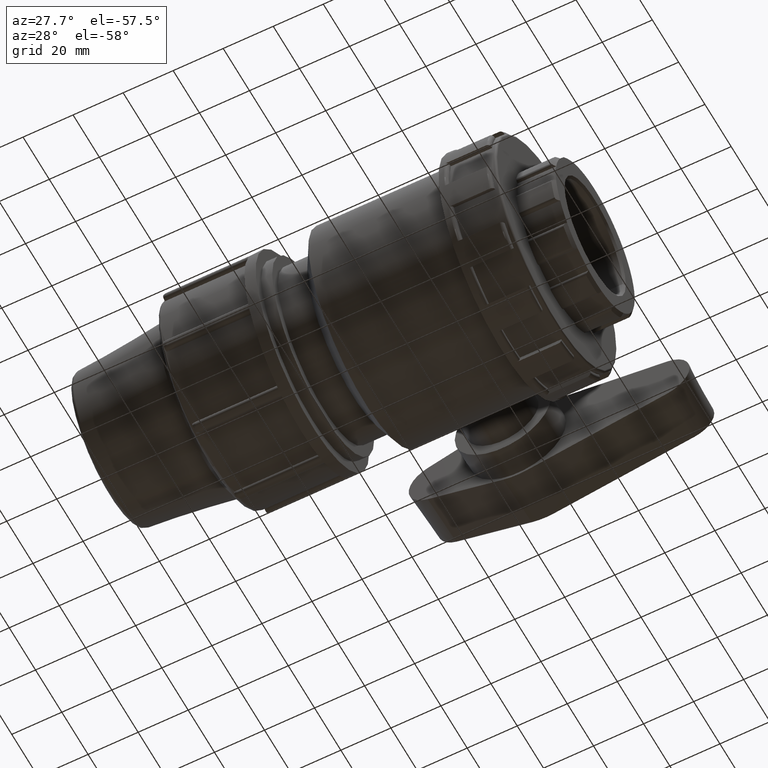
[diagram: clean part render]
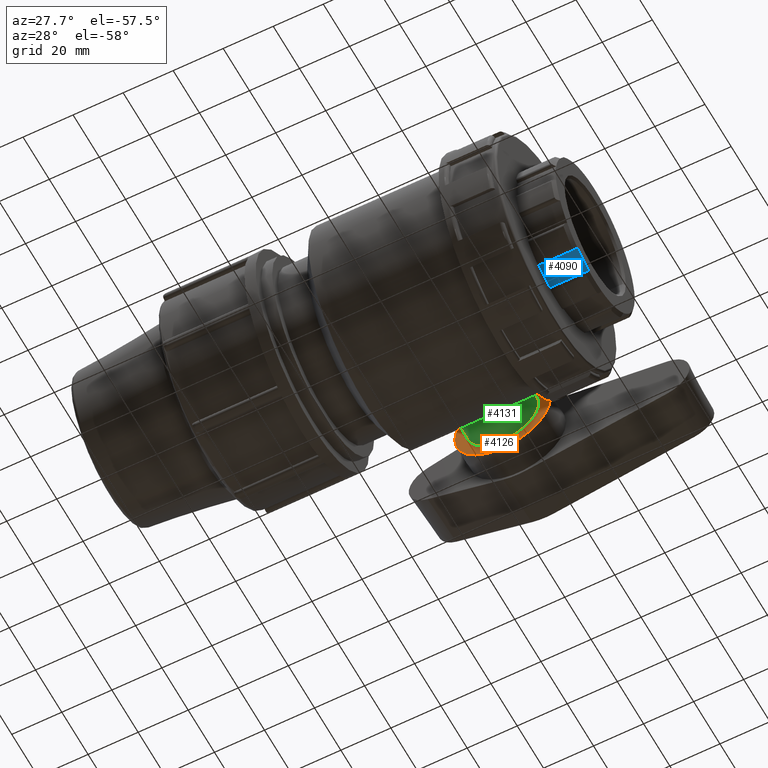
[diagram: same view with three faces highlighted in distinct colors, each labeled with its STEP entity id]
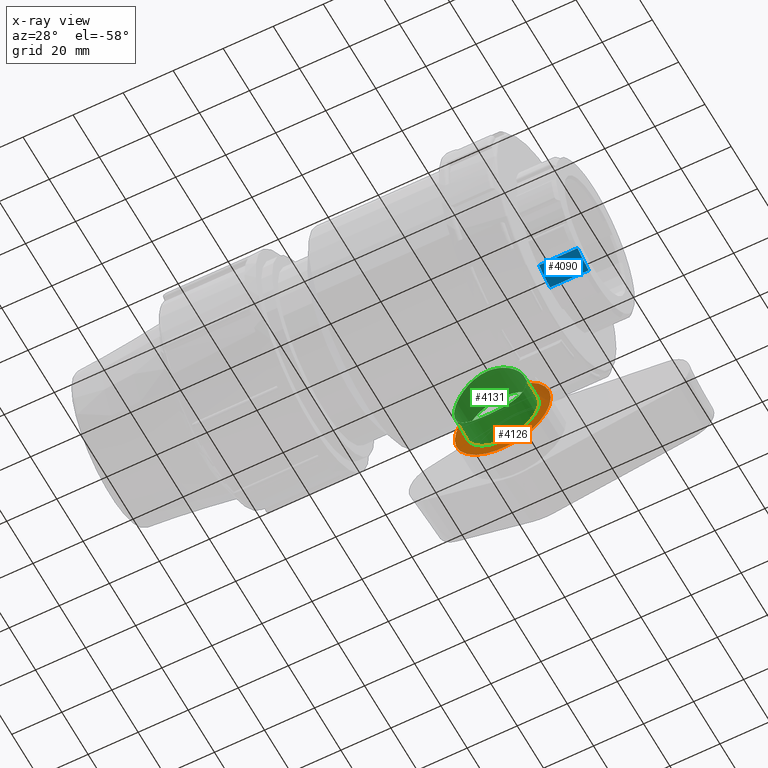
[diagram: x-ray of the same camera — body ghosted, the three highlighted faces saturated]
A machine part, auxiliary view with three faces highlighted in distinct colors.
The next image is the same camera in x-ray (body ghosted, the three faces saturated) — at least one of them is partly hidden behind the body in this view.
Their STEP definitions:

[orange] entity #4126 — the highlighted planar face has unit normal (0, -1, 0).
#44=FACE_BOUND('',#765,.T.);
#151=PLANE('',#4531);
#506=FACE_OUTER_BOUND('',#764,.T.);
#764=EDGE_LOOP('',(#3355));
#765=EDGE_LOOP('',(#3356));
#1513=CIRCLE('',#4532,19.2);
#1514=CIRCLE('',#4533,14.4);
#1855=VERTEX_POINT('',#7686);
#1856=VERTEX_POINT('',#7688);
#2406=EDGE_CURVE('',#1855,#1855,#1513,.T.);
#2407=EDGE_CURVE('',#1856,#1856,#1514,.T.);
#3355=ORIENTED_EDGE('',*,*,#2406,.F.);
#3356=ORIENTED_EDGE('',*,*,#2407,.F.);
#4126=ADVANCED_FACE('',(#506,#44),#151,.T.);
#4531=AXIS2_PLACEMENT_3D('',#7685,#5466,#5467);
#4532=AXIS2_PLACEMENT_3D('',#7687,#5468,#5469);
#4533=AXIS2_PLACEMENT_3D('',#7689,#5470,#5471);
#5466=DIRECTION('center_axis',(3.00964072940555E-16,-1.,0.));
#5467=DIRECTION('ref_axis',(0.,0.,-1.));
#5468=DIRECTION('center_axis',(-3.00964072940555E-16,1.,0.));
#5469=DIRECTION('ref_axis',(1.,3.00964072940555E-16,0.));
#5470=DIRECTION('center_axis',(0.,-1.,0.));
#5471=DIRECTION('ref_axis',(1.,0.,0.));
#7685=CARTESIAN_POINT('Origin',(-19.2,52.8,0.));
#7686=CARTESIAN_POINT('',(-19.2,52.8,0.));
#7687=CARTESIAN_POINT('Origin',(-3.71127622851111E-30,52.8,0.));
#7688=CARTESIAN_POINT('',(-14.4,52.8,1.76349139077219E-15));
#7689=CARTESIAN_POINT('Origin',(0.,52.8,0.));

[blue] entity #4090 — the highlighted cylindrical surface (partial cylindrical patch) has radius 30.0462 mm, axis along (-1, 0, 0).
#470=FACE_OUTER_BOUND('',#726,.T.);
#726=EDGE_LOOP('',(#3198,#3199,#3200,#3201));
#975=LINE('',#7401,#1203);
#977=LINE('',#7421,#1205);
#1203=VECTOR('',#5197,15.4);
#1205=VECTOR('',#5203,15.4);
#1472=CIRCLE('',#4455,30.04615);
#1473=CIRCLE('',#4456,30.04615);
#1795=VERTEX_POINT('',#7382);
#1797=VERTEX_POINT('',#7399);
#1798=VERTEX_POINT('',#7403);
#1801=VERTEX_POINT('',#7408);
#2295=EDGE_CURVE('',#1795,#1797,#975,.T.);
#2299=EDGE_CURVE('',#1801,#1798,#977,.T.);
#2335=EDGE_CURVE('',#1801,#1795,#1472,.T.);
#2336=EDGE_CURVE('',#1797,#1798,#1473,.T.);
#3198=ORIENTED_EDGE('',*,*,#2335,.T.);
#3199=ORIENTED_EDGE('',*,*,#2295,.T.);
#3200=ORIENTED_EDGE('',*,*,#2336,.T.);
#3201=ORIENTED_EDGE('',*,*,#2299,.F.);
#3945=CYLINDRICAL_SURFACE('',#4454,30.04615);
#4090=ADVANCED_FACE('',(#470),#3945,.T.);
#4454=AXIS2_PLACEMENT_3D('',#7532,#5283,#5284);
#4455=AXIS2_PLACEMENT_3D('',#7533,#5285,#5286);
#4456=AXIS2_PLACEMENT_3D('',#7534,#5287,#5288);
#5197=DIRECTION('',(-1.,0.,0.));
#5203=DIRECTION('',(-1.,0.,0.));
#5283=DIRECTION('center_axis',(-1.,0.,0.));
#5284=DIRECTION('ref_axis',(0.,0.951056516295154,-0.309016994374947));
#5285=DIRECTION('center_axis',(-1.,0.,0.));
#5286=DIRECTION('ref_axis',(0.,-1.,0.));
#5287=DIRECTION('center_axis',(1.,0.,0.));
#5288=DIRECTION('ref_axis',(0.,0.951056516295154,-0.309016994374947));
#7382=CARTESIAN_POINT('',(64.6666666666667,-13.4457845419884,-26.8697228841855));
#7399=CARTESIAN_POINT('',(49.2666666666667,-13.4457845419884,-26.8697228841855));
#7401=CARTESIAN_POINT('',(64.6666666666667,-13.4457845419884,-26.8697228841855));
#7403=CARTESIAN_POINT('',(49.2666666666667,-4.9157586473372,-29.6412963067344));
#7408=CARTESIAN_POINT('',(64.6666666666667,-4.9157586473372,-29.6412963067344));
#7421=CARTESIAN_POINT('',(64.6666666666667,-4.9157586473372,-29.6412963067344));
#7532=CARTESIAN_POINT('Origin',(64.6666666666667,0.,0.));
#7533=CARTESIAN_POINT('Origin',(64.6666666666667,0.,0.));
#7534=CARTESIAN_POINT('Origin',(49.2666666666667,0.,0.));

[green] entity #4131 — the highlighted cylindrical surface (bore or boss wall) has radius 14.4 mm, axis along (0, -1, 0).
#46=FACE_BOUND('',#772,.T.);
#291=B_SPLINE_CURVE_WITH_KNOTS('',3,(#7704,#7705,#7706,#7707,#7708,#7709,
#7710,#7711,#7712,#7713,#7714,#7715,#7716,#7717,#7718,#7719,#7720,#7721,
#7722,#7723,#7724,#7725,#7726,#7727,#7728,#7729,#7730,#7731,#7732,#7733,
#7734,#7735,#7736,#7737,#7738,#7739,#7740,#7741,#7742,#7743,#7744,#7745,
#7746,#7747,#7748,#7749,#7750,#7751,#7752,#7753),.UNSPECIFIED.,.T.,.F.,
(4,2,2,2,2,2,2,2,2,2,2,2,2,2,2,2,2,2,2,2,2,2,2,2,4),(0.,0.273555490481054,
0.547110980962108,1.09422196192422,1.64107919239118,1.91450780762465,2.18793642285813,
2.46136503809161,2.73479365332509,3.28165088379205,3.82876186475416,4.10231735523521,
4.37587284571627,4.64942833619732,4.92298382667838,5.47009480764048,6.01695203810744,
6.29038065334092,6.5638092685744,6.83723788380788,7.11066649904136,7.65752372950832,
8.20463471047043,8.47819020095148,8.75174569143254),.UNSPECIFIED.);
#511=FACE_OUTER_BOUND('',#771,.T.);
#771=EDGE_LOOP('',(#3371));
#772=EDGE_LOOP('',(#3372));
#1514=CIRCLE('',#4533,14.4);
#1856=VERTEX_POINT('',#7688);
#1859=VERTEX_POINT('',#7703);
#2407=EDGE_CURVE('',#1856,#1856,#1514,.T.);
#2414=EDGE_CURVE('',#1859,#1859,#291,.T.);
#3371=ORIENTED_EDGE('',*,*,#2407,.T.);
#3372=ORIENTED_EDGE('',*,*,#2414,.F.);
#3967=CYLINDRICAL_SURFACE('',#4542,14.4);
#4131=ADVANCED_FACE('',(#511,#46),#3967,.T.);
#4533=AXIS2_PLACEMENT_3D('',#7689,#5470,#5471);
#4542=AXIS2_PLACEMENT_3D('',#7702,#5490,#5491);
#5470=DIRECTION('center_axis',(0.,-1.,0.));
#5471=DIRECTION('ref_axis',(1.,0.,0.));
#5490=DIRECTION('center_axis',(0.,-1.,0.));
#5491=DIRECTION('ref_axis',(1.,0.,0.));
#7688=CARTESIAN_POINT('',(-14.4,52.8,1.76349139077219E-15));
#7689=CARTESIAN_POINT('Origin',(0.,52.8,0.));
#7702=CARTESIAN_POINT('Origin',(0.,52.8,0.));
#7703=CARTESIAN_POINT('',(0.,40.7293505963451,14.4));
#7704=CARTESIAN_POINT('Ctrl Pts',(0.,40.7293505963451,14.4));
#7705=CARTESIAN_POINT('Ctrl Pts',(-0.911851634936848,40.7293505963451,14.4));
#7706=CARTESIAN_POINT('Ctrl Pts',(-1.85237510172147,40.7608231408258,14.3119947309041));
#7707=CARTESIAN_POINT('Ctrl Pts',(-3.71854079876528,40.8881517698876,13.9440647259576));
#7708=CARTESIAN_POINT('Ctrl Pts',(-4.64421276125376,40.9838787409539,13.664246131558));
#7709=CARTESIAN_POINT('Ctrl Pts',(-7.30156579139086,41.3413979437776,12.5590018698195));
#7710=CARTESIAN_POINT('Ctrl Pts',(-8.91134038617683,41.674591527307,11.4533349119957));
#7711=CARTESIAN_POINT('Ctrl Pts',(-11.4527454224844,42.2909727862583,8.91192987568814));
#7712=CARTESIAN_POINT('Ctrl Pts',(-12.5588662000788,42.615892156369,7.30192049218663));
#7713=CARTESIAN_POINT('Ctrl Pts',(-13.6643642946926,42.9589587369855,4.64391440503192));
#7714=CARTESIAN_POINT('Ctrl Pts',(-13.9442021330183,43.0498614969582,3.71803209612966));
#7715=CARTESIAN_POINT('Ctrl Pts',(-14.3120706504113,43.1704200591327,1.85180168850108));
#7716=CARTESIAN_POINT('Ctrl Pts',(-14.4,43.2,0.911428717444933));
#7717=CARTESIAN_POINT('Ctrl Pts',(-14.4,43.2,-0.911428717444929));
#7718=CARTESIAN_POINT('Ctrl Pts',(-14.3120706504113,43.1704200591327,-1.85180168850107));
#7719=CARTESIAN_POINT('Ctrl Pts',(-13.9442021330183,43.0498614969582,-3.71803209612966));
#7720=CARTESIAN_POINT('Ctrl Pts',(-13.6643642946926,42.9589587369855,-4.64391440503191));
#7721=CARTESIAN_POINT('Ctrl Pts',(-12.5588662000788,42.615892156369,-7.30192049218663));
#7722=CARTESIAN_POINT('Ctrl Pts',(-11.4527454224844,42.2909727862583,-8.91192987568814));
#7723=CARTESIAN_POINT('Ctrl Pts',(-8.91134038617684,41.674591527307,-11.4533349119957));
#7724=CARTESIAN_POINT('Ctrl Pts',(-7.30156579139086,41.3413979437776,-12.5590018698195));
#7725=CARTESIAN_POINT('Ctrl Pts',(-4.64421276125376,40.9838787409539,-13.664246131558));
#7726=CARTESIAN_POINT('Ctrl Pts',(-3.71854079876528,40.8881517698876,-13.9440647259576));
#7727=CARTESIAN_POINT('Ctrl Pts',(-1.85237510172147,40.7608231408258,-14.3119947309041));
#7728=CARTESIAN_POINT('Ctrl Pts',(-0.911851634936847,40.7293505963452,-14.4));
#7729=CARTESIAN_POINT('Ctrl Pts',(0.911851634936847,40.7293505963452,-14.4));
#7730=CARTESIAN_POINT('Ctrl Pts',(1.85237510172147,40.7608231408258,-14.3119947309041));
#7731=CARTESIAN_POINT('Ctrl Pts',(3.71854079876528,40.8881517698876,-13.9440647259576));
#7732=CARTESIAN_POINT('Ctrl Pts',(4.64421276125376,40.9838787409539,-13.664246131558));
#7733=CARTESIAN_POINT('Ctrl Pts',(7.30156579139085,41.3413979437776,-12.5590018698195));
#7734=CARTESIAN_POINT('Ctrl Pts',(8.91134038617683,41.674591527307,-11.4533349119957));
#7735=CARTESIAN_POINT('Ctrl Pts',(11.4527454224844,42.2909727862583,-8.91192987568814));
#7736=CARTESIAN_POINT('Ctrl Pts',(12.5588662000788,42.615892156369,-7.30192049218663));
#7737=CARTESIAN_POINT('Ctrl Pts',(13.6643642946926,42.9589587369855,-4.64391440503192));
#7738=CARTESIAN_POINT('Ctrl Pts',(13.9442021330183,43.0498614969582,-3.71803209612967));
#7739=CARTESIAN_POINT('Ctrl Pts',(14.3120706504113,43.1704200591327,-1.85180168850108));
#7740=CARTESIAN_POINT('Ctrl Pts',(14.4,43.2,-0.911428717444935));
#7741=CARTESIAN_POINT('Ctrl Pts',(14.4,43.2,0.911428717444927));
#7742=CARTESIAN_POINT('Ctrl Pts',(14.3120706504113,43.1704200591327,1.85180168850107));
#7743=CARTESIAN_POINT('Ctrl Pts',(13.9442021330183,43.0498614969582,3.71803209612966));
#7744=CARTESIAN_POINT('Ctrl Pts',(13.6643642946926,42.9589587369855,4.64391440503191));
#7745=CARTESIAN_POINT('Ctrl Pts',(12.5588662000788,42.615892156369,7.30192049218663));
#7746=CARTESIAN_POINT('Ctrl Pts',(11.4527454224844,42.2909727862583,8.91192987568814));
#7747=CARTESIAN_POINT('Ctrl Pts',(8.91134038617684,41.674591527307,11.4533349119957));
#7748=CARTESIAN_POINT('Ctrl Pts',(7.30156579139086,41.3413979437776,12.5590018698195));
#7749=CARTESIAN_POINT('Ctrl Pts',(4.64421276125377,40.9838787409539,13.664246131558));
#7750=CARTESIAN_POINT('Ctrl Pts',(3.71854079876529,40.8881517698876,13.9440647259576));
#7751=CARTESIAN_POINT('Ctrl Pts',(1.85237510172147,40.7608231408258,14.3119947309041));
#7752=CARTESIAN_POINT('Ctrl Pts',(0.911851634936848,40.7293505963451,14.4));
#7753=CARTESIAN_POINT('Ctrl Pts',(-5.55111512312578E-16,40.7293505963451,
14.4));